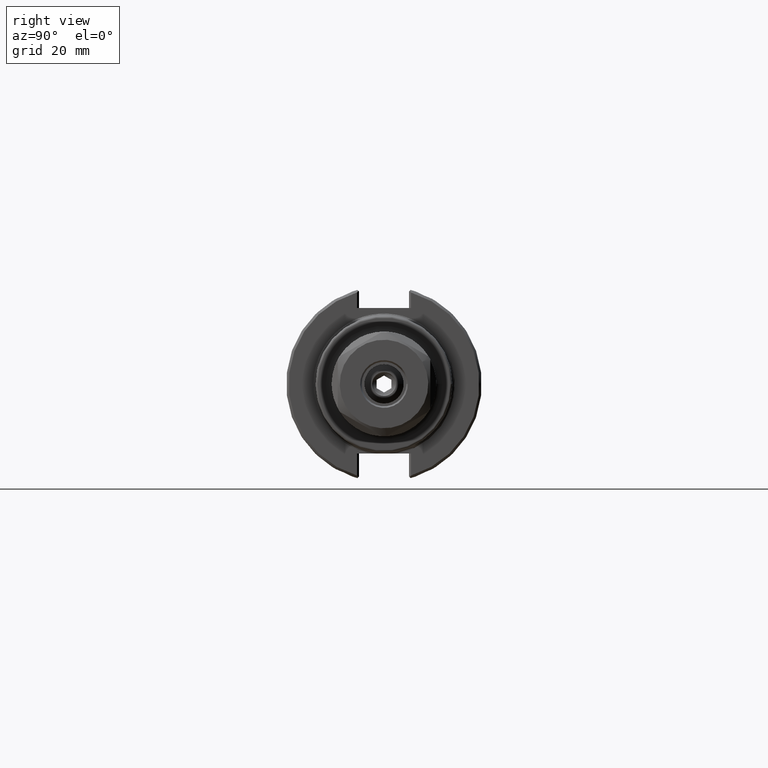
[diagram: clean part render]
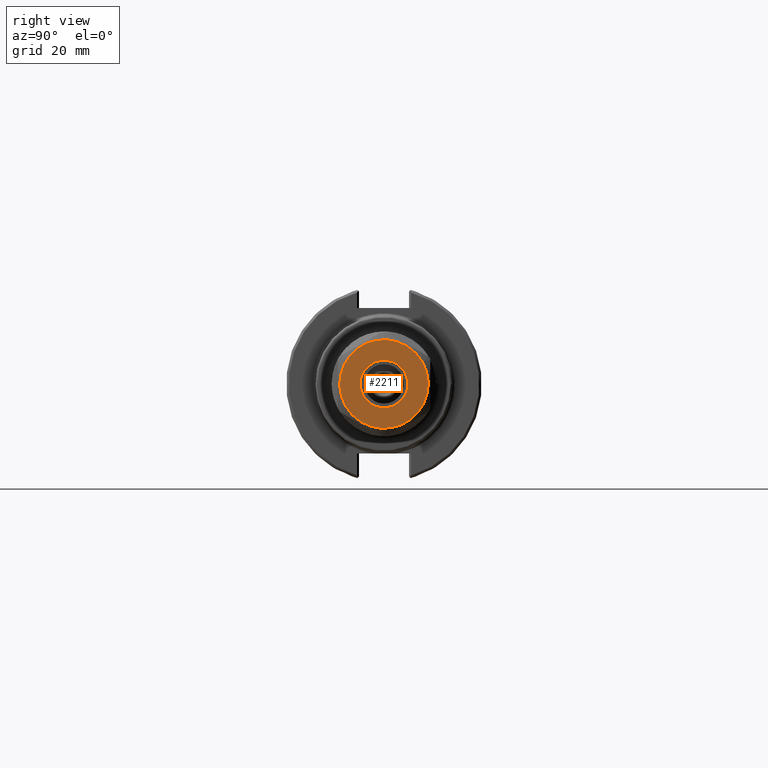
[diagram: same view with one face highlighted and labeled with its STEP entity id]
A machine part, right view. The second image highlights one B-rep face of the part: STEP entity #2211.
In plain terms, the highlighted planar face has unit normal (1, 0, 0).
Its self-contained STEP definition (entity closure, byte-faithful):
#414=PLANE('',#2437);
#471=FACE_BOUND('',#774,.T.);
#595=FACE_OUTER_BOUND('',#773,.T.);
#773=EDGE_LOOP('',(#1926));
#774=EDGE_LOOP('',(#1927));
#885=CIRCLE('',#2418,14.382308546376);
#893=CIRCLE('',#2436,7.747);
#1108=VERTEX_POINT('',#4554);
#1116=VERTEX_POINT('',#4580);
#1384=EDGE_CURVE('',#1108,#1108,#885,.T.);
#1392=EDGE_CURVE('',#1116,#1116,#893,.T.);
#1926=ORIENTED_EDGE('',*,*,#1384,.F.);
#1927=ORIENTED_EDGE('',*,*,#1392,.T.);
#2211=ADVANCED_FACE('',(#595,#471),#414,.T.);
#2418=AXIS2_PLACEMENT_3D('',#4555,#2924,#2925);
#2436=AXIS2_PLACEMENT_3D('',#4581,#2960,#2961);
#2437=AXIS2_PLACEMENT_3D('',#4582,#2962,#2963);
#2924=DIRECTION('center_axis',(1.,0.,0.));
#2925=DIRECTION('ref_axis',(2.41367151994932E-17,1.,0.));
#2960=DIRECTION('center_axis',(1.,0.,0.));
#2961=DIRECTION('ref_axis',(2.41367151994931E-17,1.,0.));
#2962=DIRECTION('center_axis',(-1.,0.,0.));
#2963=DIRECTION('ref_axis',(0.,0.,1.));
#4554=CARTESIAN_POINT('',(-0.195789636357247,14.382308546376,0.));
#4555=CARTESIAN_POINT('Origin',(-0.195789636357247,0.,0.));
#4580=CARTESIAN_POINT('',(-0.195789636357245,7.747,0.));
#4581=CARTESIAN_POINT('Origin',(-0.195789636357245,0.,0.));
#4582=CARTESIAN_POINT('Origin',(-0.195789636357246,11.064654273188,0.));